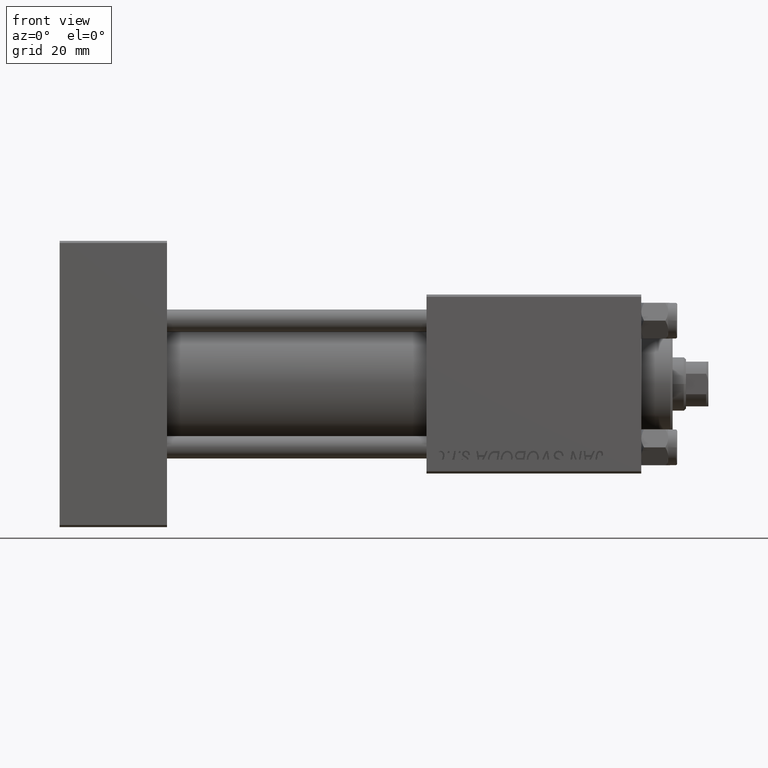
[diagram: clean part render]
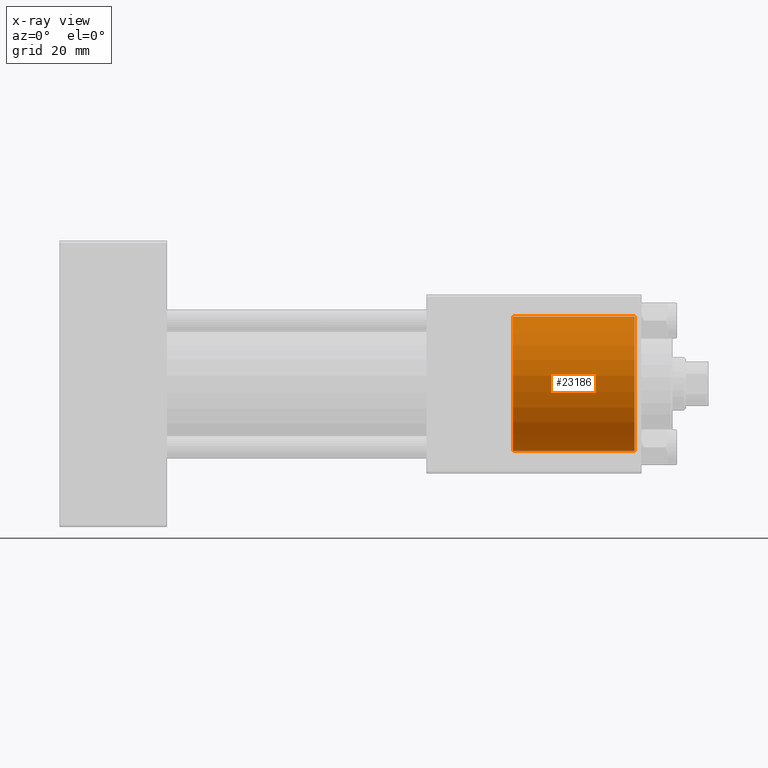
[diagram: x-ray — body ghosted, one internal face saturated and labeled with its STEP entity id]
A machine part, front view, then the same camera in x-ray: the body is ghosted and one INTERNAL B-rep face — a face not visible from any outside direction — is saturated and labeled: STEP entity #23186.
In plain terms, the highlighted cylindrical surface (partial cylindrical patch) has radius 15 mm, axis along (1, 0, 0).
Its self-contained STEP definition (entity closure, byte-faithful):
#900 = CARTESIAN_POINT ( 'NONE',  ( 101.2999999999999972, 0.000000000000000000, -15.00000000000000000 ) ) ;
#2562 = CARTESIAN_POINT ( 'NONE',  ( 101.2999999999999972, 0.000000000000000000, -15.00000000000000000 ) ) ;
#3519 = FACE_OUTER_BOUND ( 'NONE', #46259, .T. ) ;
#7162 = EDGE_CURVE ( 'NONE', #16071, #42036, #24634, .T. ) ;
#7471 = DIRECTION ( 'NONE',  ( 0.000000000000000000, 0.000000000000000000, 1.000000000000000000 ) ) ;
#11201 = AXIS2_PLACEMENT_3D ( 'NONE', #18693, #34088, #42405 ) ;
#11996 = VECTOR ( 'NONE', #48761, 1000.000000000000000 ) ;
#12962 = DIRECTION ( 'NONE',  ( 0.000000000000000000, 0.000000000000000000, -1.000000000000000000 ) ) ;
#13993 = CARTESIAN_POINT ( 'NONE',  ( 128.4999999999999716, 1.836970198721029589E-15, 15.00000000000000000 ) ) ;
#15229 = ORIENTED_EDGE ( 'NONE', *, *, #42919, .T. ) ;
#15996 = CARTESIAN_POINT ( 'NONE',  ( 128.4999999999999716, 0.000000000000000000, -15.00000000000000000 ) ) ;
#16071 = VERTEX_POINT ( 'NONE', #13993 ) ;
#17872 = EDGE_CURVE ( 'NONE', #36656, #22333, #45938, .T. ) ;
#18504 = EDGE_CURVE ( 'NONE', #22333, #42036, #33633, .T. ) ;
#18693 = CARTESIAN_POINT ( 'NONE',  ( 101.2999999999999972, 0.000000000000000000, 0.000000000000000000 ) ) ;
#19804 = CARTESIAN_POINT ( 'NONE',  ( 101.2999999999999972, 1.836970198721029589E-15, 15.00000000000000000 ) ) ;
#19844 = DIRECTION ( 'NONE',  ( 1.000000000000000000, 0.000000000000000000, 0.000000000000000000 ) ) ;
#22333 = VERTEX_POINT ( 'NONE', #900 ) ;
#23186 = ADVANCED_FACE ( 'NONE', ( #3519 ), #37617, .F. ) ;
#23684 = CARTESIAN_POINT ( 'NONE',  ( 101.2999999999999972, 1.836970198721029589E-15, 15.00000000000000000 ) ) ;
#24634 = CIRCLE ( 'NONE', #35901, 15.00000000000000000 ) ;
#25231 = ORIENTED_EDGE ( 'NONE', *, *, #7162, .T. ) ;
#26115 = VECTOR ( 'NONE', #27478, 1000.000000000000000 ) ;
#26608 = AXIS2_PLACEMENT_3D ( 'NONE', #32161, #47537, #12962 ) ;
#27478 = DIRECTION ( 'NONE',  ( 1.000000000000000000, -0.000000000000000000, -0.000000000000000000 ) ) ;
#32161 = CARTESIAN_POINT ( 'NONE',  ( 101.2999999999999972, 0.000000000000000000, 0.000000000000000000 ) ) ;
#33633 = LINE ( 'NONE', #2562, #11996 ) ;
#34088 = DIRECTION ( 'NONE',  ( 1.000000000000000000, -0.000000000000000000, -0.000000000000000000 ) ) ;
#34244 = CARTESIAN_POINT ( 'NONE',  ( 128.4999999999999716, 0.000000000000000000, 0.000000000000000000 ) ) ;
#35901 = AXIS2_PLACEMENT_3D ( 'NONE', #34244, #19844, #7471 ) ;
#36656 = VERTEX_POINT ( 'NONE', #19804 ) ;
#37617 = CYLINDRICAL_SURFACE ( 'NONE', #11201, 15.00000000000000000 ) ;
#39053 = ORIENTED_EDGE ( 'NONE', *, *, #17872, .F. ) ;
#39317 = LINE ( 'NONE', #23684, #26115 ) ;
#39845 = ORIENTED_EDGE ( 'NONE', *, *, #18504, .F. ) ;
#42036 = VERTEX_POINT ( 'NONE', #15996 ) ;
#42405 = DIRECTION ( 'NONE',  ( 0.000000000000000000, 0.000000000000000000, -1.000000000000000000 ) ) ;
#42919 = EDGE_CURVE ( 'NONE', #36656, #16071, #39317, .T. ) ;
#45938 = CIRCLE ( 'NONE', #26608, 15.00000000000000000 ) ;
#46259 = EDGE_LOOP ( 'NONE', ( #39053, #15229, #25231, #39845 ) ) ;
#47537 = DIRECTION ( 'NONE',  ( 1.000000000000000000, 0.000000000000000000, 0.000000000000000000 ) ) ;
#48761 = DIRECTION ( 'NONE',  ( 1.000000000000000000, -0.000000000000000000, -0.000000000000000000 ) ) ;